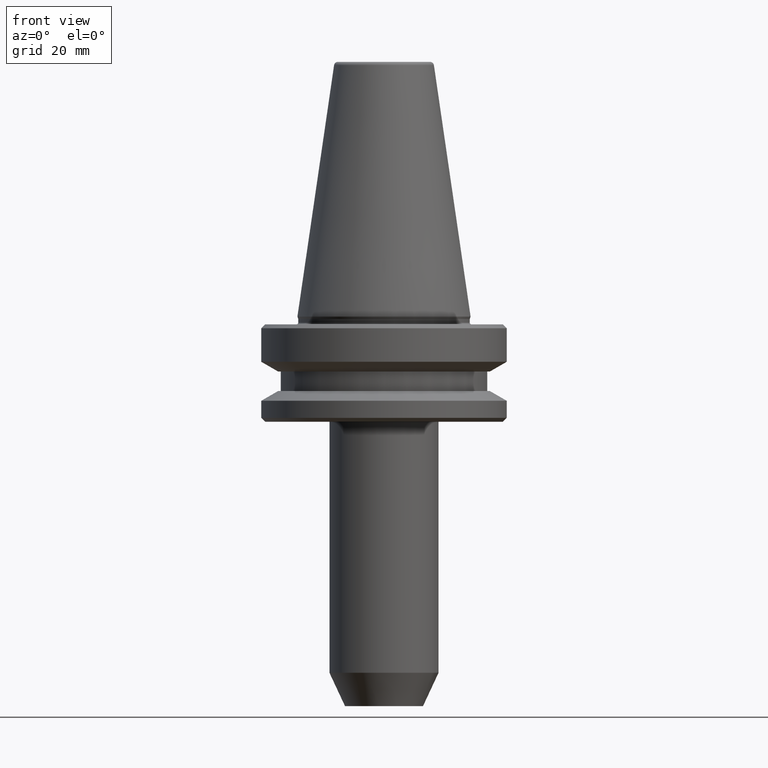
[diagram: clean part render]
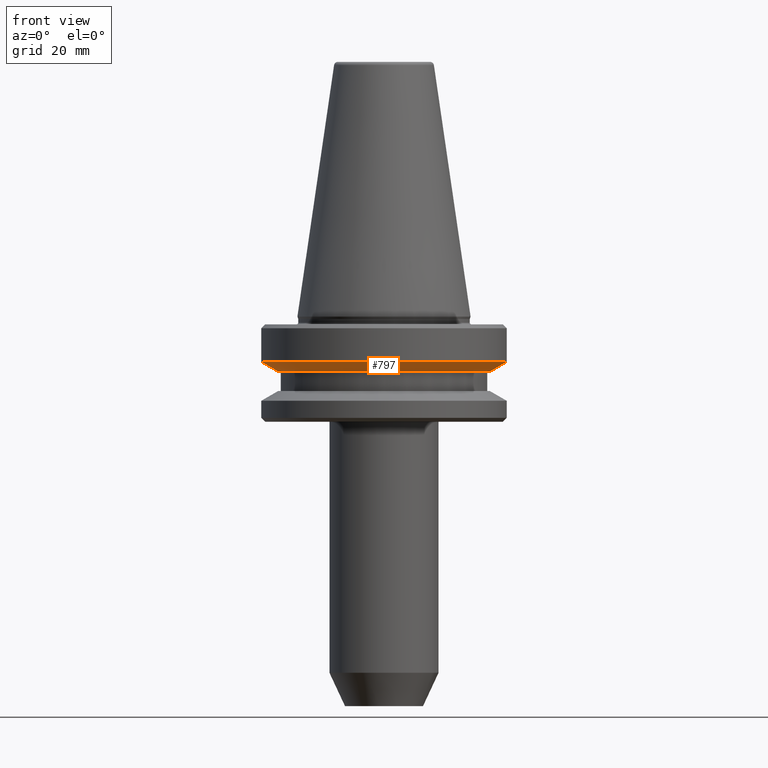
[diagram: same view with one face highlighted and labeled with its STEP entity id]
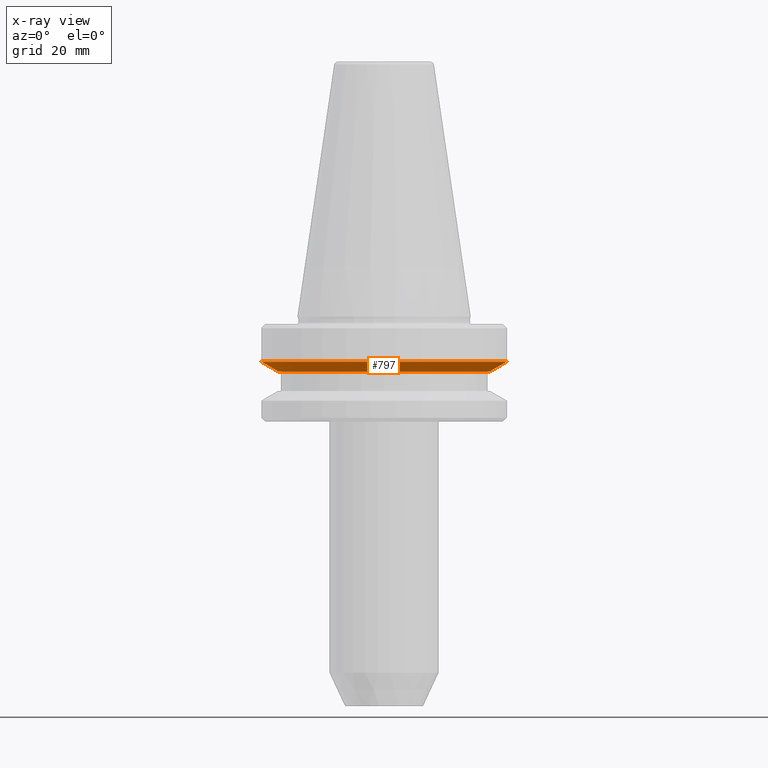
[diagram: x-ray of the same camera — body ghosted, the highlighted face saturated]
A machine part, front view. The second image highlights one B-rep face of the part: STEP entity #797.
The next image is the same camera in x-ray: the body ghosted, the highlighted face saturated — about 0% of this face is hidden behind the body in this view.
In plain terms, the highlighted conical surface has half-angle 60 deg.
Its self-contained STEP definition (entity closure, byte-faithful):
#3 = CIRCLE ( 'NONE', #516, 27.16962701892283900 ) ;
#35 = EDGE_CURVE ( 'NONE', #896, #912, #267, .T. ) ;
#100 = CARTESIAN_POINT ( 'NONE',  ( 27.16962701892283900, 0.0000000000000000000, -14.09999999999966700 ) ) ;
#132 = VERTEX_POINT ( 'NONE', #100 ) ;
#133 = ORIENTED_EDGE ( 'NONE', *, *, #280, .T. ) ;
#261 = CARTESIAN_POINT ( 'NONE',  ( -27.16962701892283900, 3.592478546794637900E-015, -14.09999999999966700 ) ) ;
#267 = LINE ( 'NONE', #350, #922 ) ;
#280 = EDGE_CURVE ( 'NONE', #132, #887, #597, .T. ) ;
#308 = EDGE_CURVE ( 'NONE', #912, #887, #549, .T. ) ;
#350 = CARTESIAN_POINT ( 'NONE',  ( -27.16962701892283900, 3.327319676275129600E-015, -14.09999999999966700 ) ) ;
#373 = ORIENTED_EDGE ( 'NONE', *, *, #35, .F. ) ;
#383 = CARTESIAN_POINT ( 'NONE',  ( 31.49999999999986100, 0.0000000000000000000, -11.59985799368334900 ) ) ;
#415 = CARTESIAN_POINT ( 'NONE',  ( 0.0000000000000000000, 0.0000000000000000000, -14.09999999999966700 ) ) ;
#452 = AXIS2_PLACEMENT_3D ( 'NONE', #766, #987, #537 ) ;
#458 = EDGE_CURVE ( 'NONE', #896, #132, #3, .T. ) ;
#468 = DIRECTION ( 'NONE',  ( -0.0000000000000000000, -0.0000000000000000000, 1.000000000000000000 ) ) ;
#476 = DIRECTION ( 'NONE',  ( 0.8660254037844372600, 0.0000000000000000000, 0.5000000000000026600 ) ) ;
#486 = EDGE_LOOP ( 'NONE', ( #373, #950, #133, #749 ) ) ;
#516 = AXIS2_PLACEMENT_3D ( 'NONE', #415, #468, #984 ) ;
#517 = AXIS2_PLACEMENT_3D ( 'NONE', #614, #990, #852 ) ;
#537 = DIRECTION ( 'NONE',  ( 1.000000000000000000, 0.0000000000000000000, 0.0000000000000000000 ) ) ;
#541 = CONICAL_SURFACE ( 'NONE', #452, 27.16962701892283900, 1.047197551196594700 ) ;
#549 = CIRCLE ( 'NONE', #517, 31.49999999999986100 ) ;
#574 = VECTOR ( 'NONE', #476, 999.9999999999998900 ) ;
#597 = LINE ( 'NONE', #750, #574 ) ;
#614 = CARTESIAN_POINT ( 'NONE',  ( 0.0000000000000000000, 0.0000000000000000000, -11.59985799368334900 ) ) ;
#749 = ORIENTED_EDGE ( 'NONE', *, *, #308, .F. ) ;
#750 = CARTESIAN_POINT ( 'NONE',  ( 27.16962701892283900, 0.0000000000000000000, -14.09999999999966700 ) ) ;
#764 = FACE_OUTER_BOUND ( 'NONE', #486, .T. ) ;
#766 = CARTESIAN_POINT ( 'NONE',  ( 0.0000000000000000000, 0.0000000000000000000, -14.09999999999966700 ) ) ;
#797 = ADVANCED_FACE ( 'NONE', ( #764 ), #541, .T. ) ;
#847 = CARTESIAN_POINT ( 'NONE',  ( -31.49999999999986100, 3.857637417314145300E-015, -11.59985799368334900 ) ) ;
#852 = DIRECTION ( 'NONE',  ( 1.000000000000000000, 0.0000000000000000000, 0.0000000000000000000 ) ) ;
#887 = VERTEX_POINT ( 'NONE', #383 ) ;
#896 = VERTEX_POINT ( 'NONE', #261 ) ;
#912 = VERTEX_POINT ( 'NONE', #847 ) ;
#922 = VECTOR ( 'NONE', #971, 999.9999999999998900 ) ;
#950 = ORIENTED_EDGE ( 'NONE', *, *, #458, .T. ) ;
#971 = DIRECTION ( 'NONE',  ( -0.8660254037844372600, 1.060575238724905200E-016, 0.5000000000000026600 ) ) ;
#984 = DIRECTION ( 'NONE',  ( 1.000000000000000000, 0.0000000000000000000, 0.0000000000000000000 ) ) ;
#987 = DIRECTION ( 'NONE',  ( -0.0000000000000000000, -0.0000000000000000000, 1.000000000000000000 ) ) ;
#990 = DIRECTION ( 'NONE',  ( -0.0000000000000000000, -0.0000000000000000000, 1.000000000000000000 ) ) ;